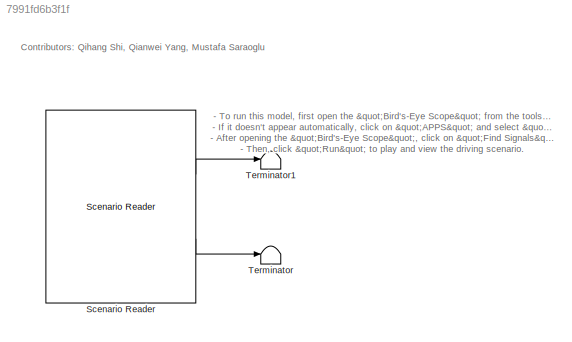
MODEL slx_7991fd6b3f1f
KIND model
CONFIG AbsTol = auto
CONFIG EnableMultiTasking = off
CONFIG FixedStep = auto
CONFIG MaxStep = auto
CONFIG MinStep = auto
CONFIG RelTol = 1e-3
CONFIG SampleTimeConstraint = Unconstrained
CONFIG SolverName = VariableStepAuto
CONFIG StartTime = 0.0
CONFIG StopTime = Sim_t
BLOCK [Reference] Scenario Reader  REF=drivingscenarioandsensors/Scenario Reader
  Ports = [0, 2]
  SourceBlock = drivingscenarioandsensors/Scenario Reader
  SourceProductBaseCode = DR
  SourceType = driving.scenario.internal.ScenarioReader
BLOCK [Terminator] Terminator
BLOCK [Terminator] Terminator1
ANNOTATION (root): Contributors: Qihang Shi, Qianwei Yang, Mustafa Saraoglu
ANNOTATION (root): - To run this model, first open the "Bird's-Eye Scope" from the toolstrip. - If it doesn't appear automatically, click on "APPS" and select "Bird's-Eye Scope" from the list. - After opening the "Bird's-Eye Scope", click on "Find Signals" in the top-left corner. - Then, click "Run" to play and view the driving scenario.
LINE Scenario Reader:1 -> Terminator1:1
LINE Scenario Reader:2 -> Terminator:1
